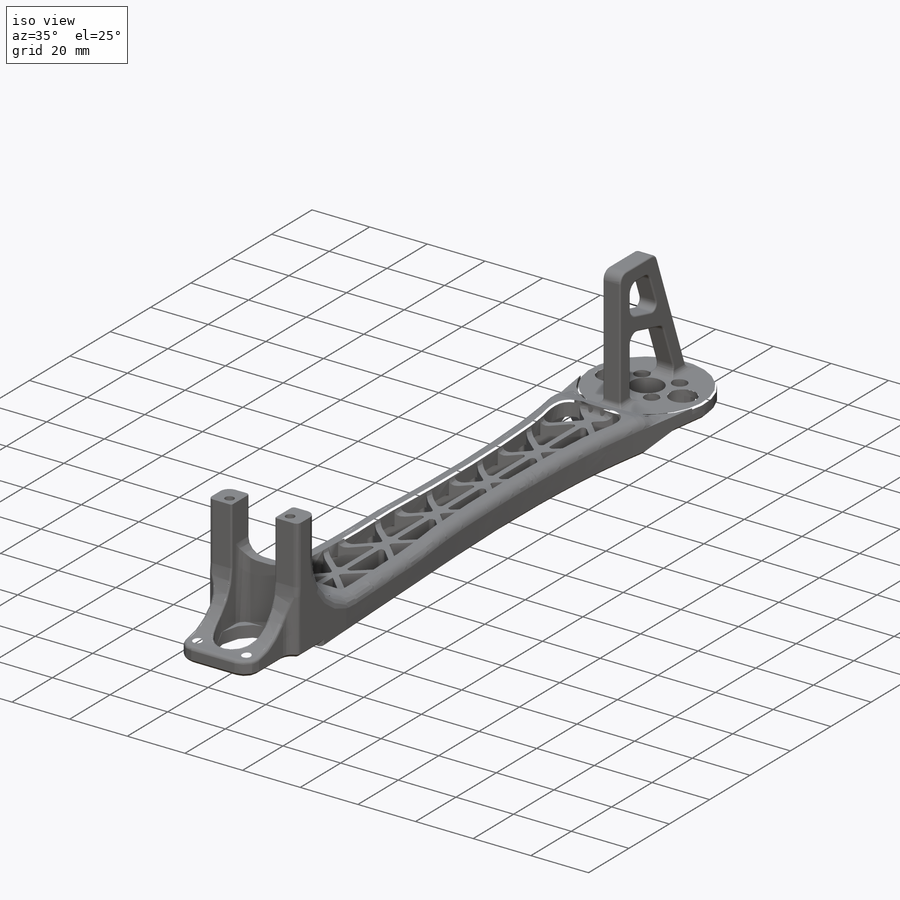
[diagram: iso view]
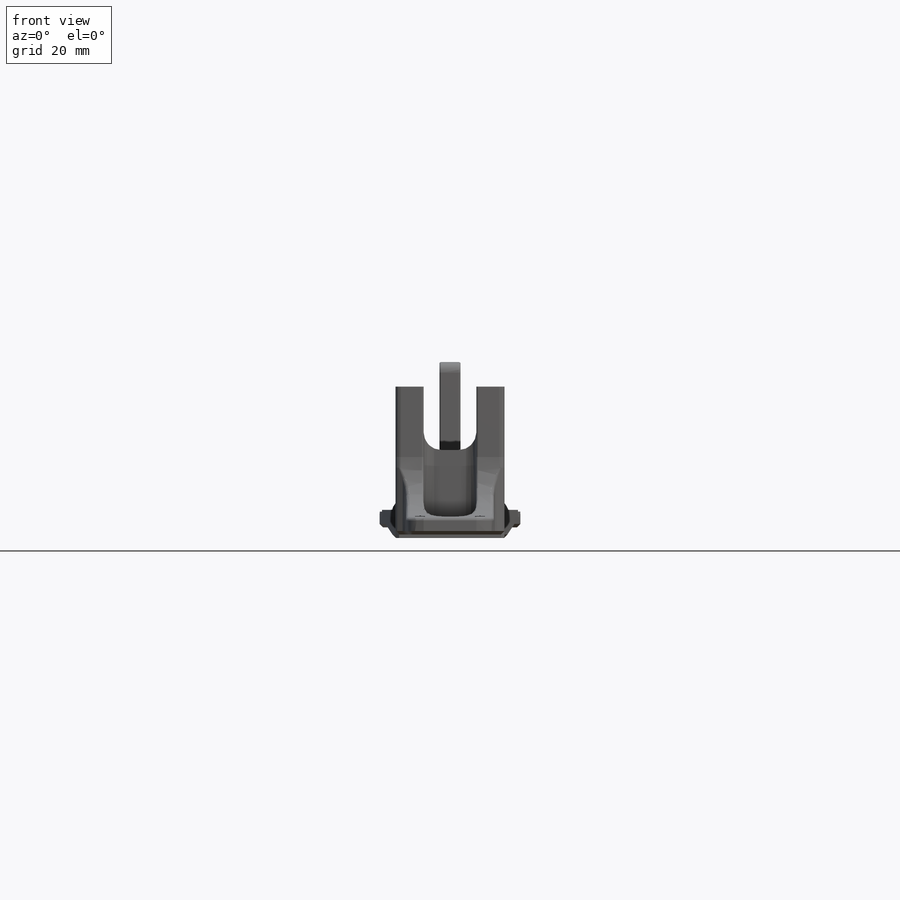
[diagram: front view]
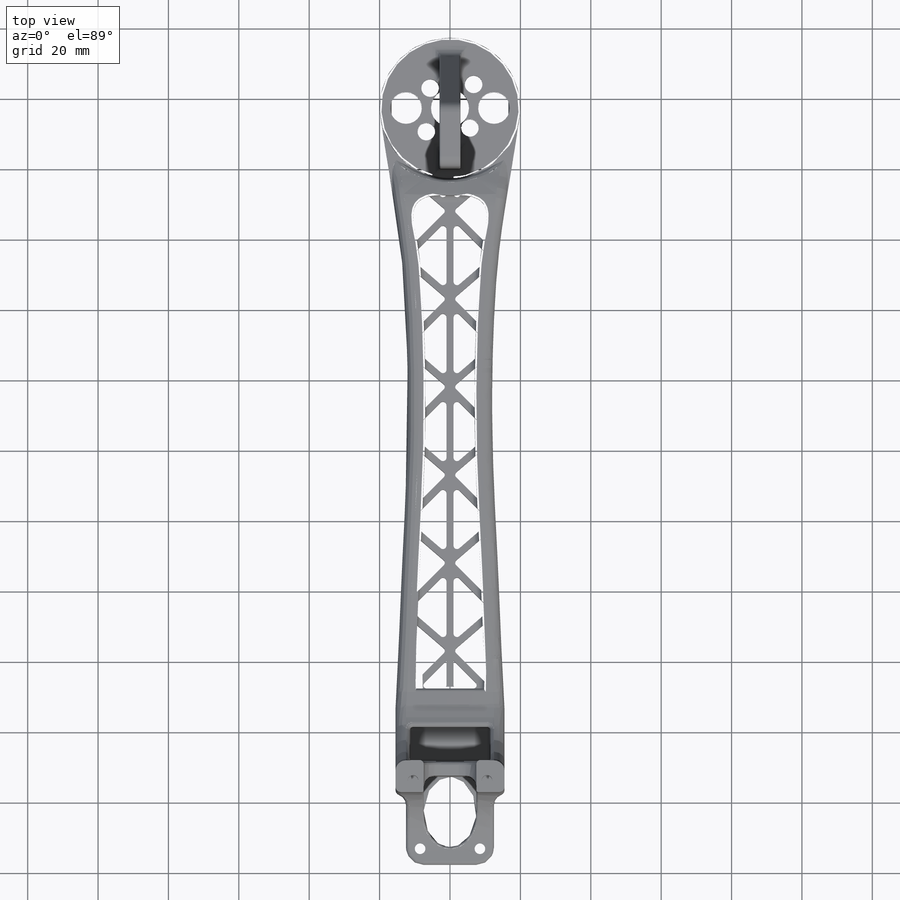
[diagram: top view]
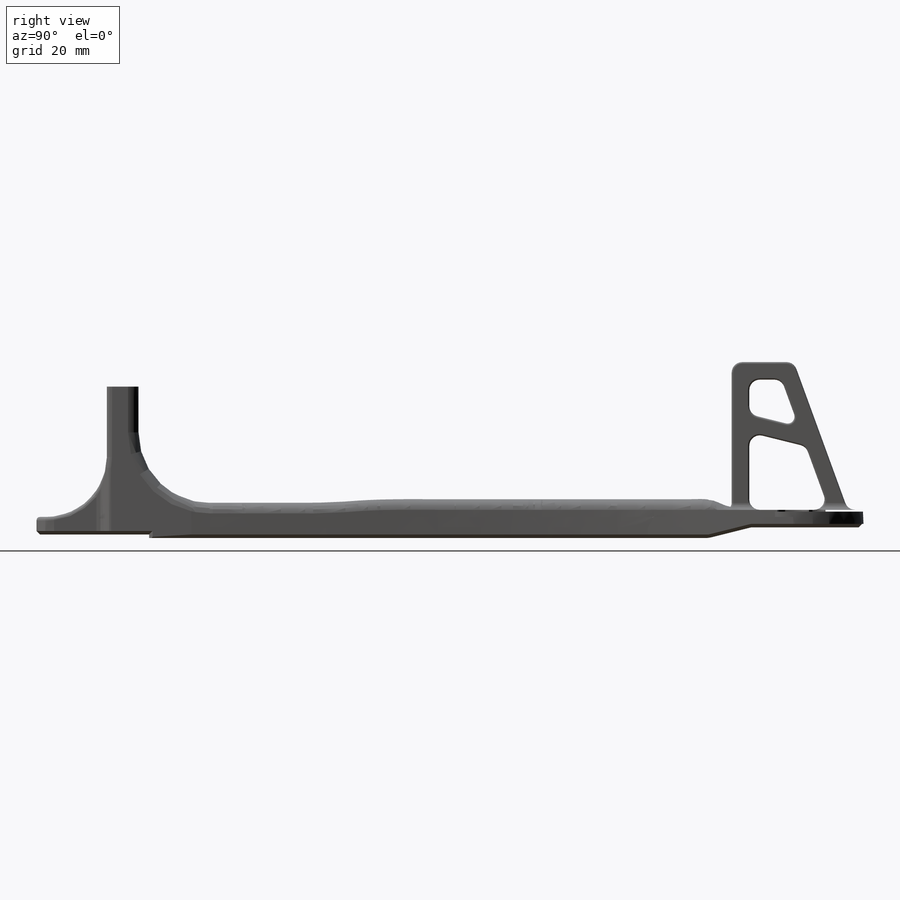
[diagram: right view]
SOLIDWORKS PART (.sldprt)
format: sldprt  version: not decoded by parser v0  size: 3,298,816 bytes
history: native  units: mm
features: fillet x30, sketch x23, cut_extrude x15, extrude x8, plane x6, chamfer x6, material x1 (+9 scaffold rows collapsed)
feature tree (98):
  scaffold x9  (default folders/planes/origin — collapsed)
  material  "Материал <не указан>"
  plane  "Спереди"
  plane  "Сверху"
  plane  "Справа"
  sketch  "Эскиз1"  dims[c1.D1=40.0mm c1.D2=~49.029033mm c1.D3=11.0mm c1.D4=4.0mm c1.D6=~11.999988mm c1.D11=4.0mm c1.D12=3.0mm c2.D11=6.0mm c2.D12=~6.000002mm c2.D4=5.5mm c2.D5=~3.500004mm c2.D6=~3.500004mm c3.D5=~5.000002mm c3.D4=3.5mm c4.D5=~8.496522mm c4.D6=~5.172723mm c4.D2=23.0mm c4.D3=13.5mm c4.D4=20.0mm c5.D4=45.0deg c5.D5=20.0mm c6.D5=45.0deg c6.D6=2.0mm c6.D7=12.0mm c6.D8=12.0mm c6.D9=~11.000012mm c6.D10=~11.000006mm c6.D11=2.0mm c6.D12=~0.999999mm c6.D4=~17.999998mm c7.D5=11.0mm c7.D4=19.0mm c8.D5=16.0mm]
  extrude  "Бобышка-Вытянуть4"  Depth=3mm
  sketch  "Эскиз2"
  extrude  "Бобышка-Вытянуть5"  Depth=2mm
  sketch  "Эскиз3"
  cut_extrude  "Вырез-Вытянуть1"  [1 undecoded]
  sketch  "Эскиз5"
  cut_extrude  "Вырез-Вытянуть2"  Depth=32mm
  sketch  "Эскиз6"  dims[D1=17.0mm]
  extrude  "Бобышка-Вытянуть6"  Depth=3mm
  sketch  "Эскиз8"
  extrude  "Бобышка-Вытянуть7"  Depth=3mm
  plane  "Плоскость6"  Offset=10mm
  sketch  "Эскиз11"  dims[D1=12.0mm]
  cut_extrude  "Вырез-Вытянуть7"  [1 undecoded]
  sketch  "Эскиз12"
  extrude  "Бобышка-Вытянуть9"  Depth=37mm
  plane  "Плоскость7"  Offset=10mm
  sketch  "Эскиз13"  dims[c1.D1=17.0mm c1.D2=20.0mm c2.D1=10.0mm c2.D2=9.0mm c2.D3=10.5mm]
  cut_extrude  "Вырез-Вытянуть8"  [1 undecoded]
  sketch  "Эскиз16"  dims[D1=18.0mm]
  cut_extrude  "Вырез-Вытянуть9"  Depth=37mm
  sketch  "Эскиз17"  dims[D1=4.0mm]
  cut_extrude  "Вырез-Вытянуть10"  Depth=37mm
  sketch  "Эскиз18"  dims[D1=20.0mm]
  cut_extrude  "Вырез-Вытянуть11"  [1 undecoded]
  sketch  "Эскиз19"
  cut_extrude  "Вырез-Вытянуть12"  Depth=38mm
  sketch  "Эскиз20"  dims[D1=~3.137697mm]
  cut_extrude  "Вырез-Вытянуть13"  Depth=6mm
  plane  "Плоскость9"  Offset=30mm
  sketch  "Эскиз21"  dims[D1=5.0mm]
  cut_extrude  "Вырез-Вытянуть14"  [1 undecoded]
  sketch  "Эскиз22"  dims[c1.D1=8.0mm c1.D2=2.0mm c2.D2=6.0]
  extrude  "Бобышка-Вытянуть12"  Depth=8mm
  sketch  "Эскиз23"  dims[D1=0.0mm]
  extrude  "Бобышка-Вытянуть13"  Depth=8mm
  sketch  "Эскиз24"
  cut_extrude  "Вырез-Вытянуть15"  [1 undecoded]
  sketch  "Эскиз26"  dims[D1=32.0mm]
  cut_extrude  "Вырез-Вытянуть16"  Depth=1mm
  fillet  "Скругление1"  Radius=5mm
  fillet  "Скругление2"  Radius=3mm
  fillet  "Скругление3"  Radius=3mm
  fillet  "Скругление4"  Radius=1.5mm
  chamfer  "Фаска1"  Distance=1mm Angle=45deg
  chamfer  "Фаска2"  Distance=1mm Angle=45deg
  chamfer  "Фаска3"  Distance=1mm Angle=45deg
  fillet  "Скругление5"  Radius=3mm
  fillet  "Скругление6"  Radius=3mm
  fillet  "Скругление7"  Radius=3mm
  fillet  "Скругление8"  Radius=1mm
  fillet  "Скругление9"  Radius=0.5mm
  fillet  "Скругление11"  Radius=2mm
  fillet  "Скругление12"  Radius=2mm
  fillet  "Скругление13"  Radius=2mm
  fillet  "Скругление14"  Radius=2mm
  fillet  "Скругление17"  Radius=1mm
  fillet  "Скругление18"  Radius=1mm
  fillet  "Скругление19"  Radius=2mm
  fillet  "Скругление20"  Radius=5mm
  fillet  "Скругление21"  Radius=1mm
  chamfer  "Фаска4"  Distance=1mm Angle=45deg
  chamfer  "Фаска5"  Distance=1mm Angle=45deg
  chamfer  "Фаска6"  Distance=1mm Angle=45deg
  fillet  "Скругление22"  Radius=1mm
  fillet  "Скругление23"  Radius=1mm
  sketch  "Эскиз28"  dims[c1.D1=23.0mm c1.D2=1.5mm c2.D1=24.0mm c2.D2=20.0mm c2.D3=~28.640007mm c2.D4=~28.640007mm c2.D5=17.0mm]
  sketch  "Эскиз29"  dims[c1.D1=~20.048471mm c1.D2=~20.048471mm c2.D1=10.5mm c2.D2=10.5mm c2.D3=7.5mm c2.D4=7.5mm c2.D5=~20.098471mm c3.D1=10.5mm c3.D5=23.3mm c3.D6=21.0mm c3.D7=3.0mm c3.D8=3.0mm]
  cut_extrude  "Вырез-Вытянуть18"  Depth=7mm
  sketch  "Эскиз30"  dims[D1=33.0mm]
  extrude  "Бобышка-Вытянуть14"  Depth=42mm
  sketch  "Эскиз31"  dims[D1=5.0mm D2=5.0mm D3=5.0mm D4=26.0mm D5=5.0mm D6=18.0mm D7=22.0mm D8=3.0mm]
  cut_extrude  "Вырез-Вытянуть19"  [1 undecoded]
  fillet  "Скругление25"  Radius=3mm
  fillet  "Скругление26"  Radius=2mm
  fillet  "Скругление27"  Radius=2mm
  fillet  "Скругление28"  Radius=0.5mm
  fillet  "Скругление29"  Radius=0.5mm
  fillet  "Скругление30"  Radius=0.5mm
  fillet  "Скругление31"  Radius=0.5mm
  fillet  "Скругление32"  Radius=0.5mm
  fillet  "Скругление35"  Radius=0.5mm
  fillet  "Скругление36"  Radius=2mm
  cut_extrude  "Вырез-Вытянуть20"  Depth=10mm
decode coverage: 68 of 82 modeling features carry decoded parameters
note: ~ marks probable driven/reference dimensions
note: 7 parameter values undecoded
summary: no parameter record found for 7 features
note: suppression state not decoded; provenance and decode notes live in map.json
